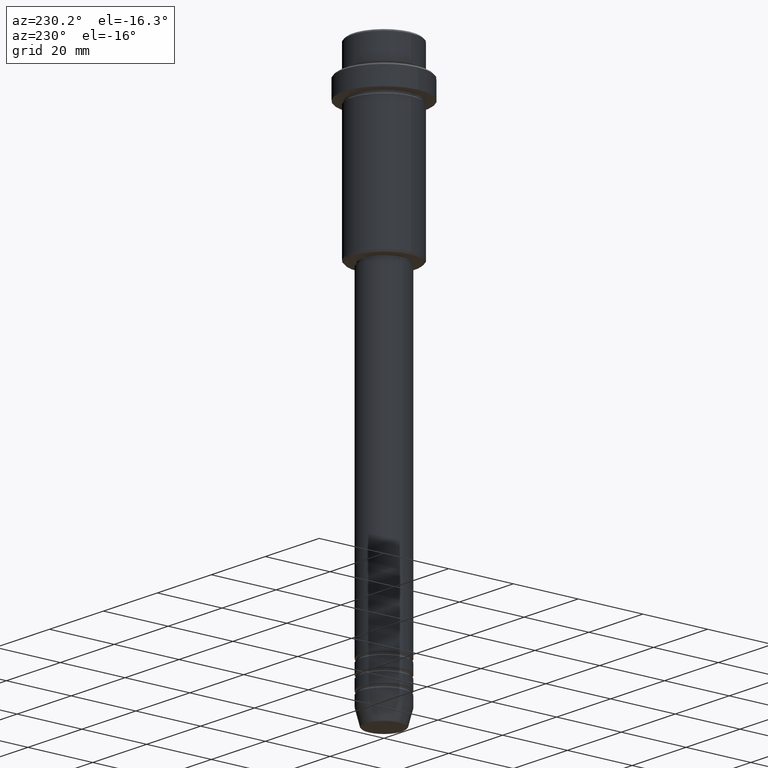
[diagram: clean part render]
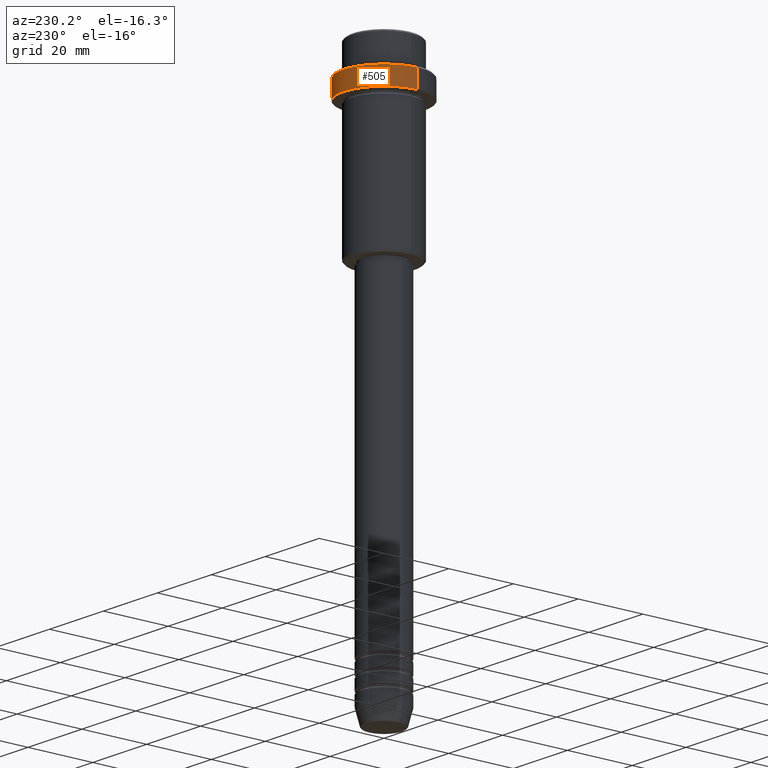
[diagram: same view with one face highlighted and labeled with its STEP entity id]
A machine part, auxiliary view. The second image highlights one B-rep face of the part: STEP entity #505.
In plain terms, the highlighted cylindrical surface (partial cylindrical patch) has radius 12.5 mm, axis along (-0, -0, 1).
Its self-contained STEP definition (entity closure, byte-faithful):
#4 = VERTEX_POINT ( 'NONE', #636 ) ;
#37 = VECTOR ( 'NONE', #1148, 1000.000000000000000 ) ;
#38 = DIRECTION ( 'NONE',  ( -0.000000000000000000, -0.000000000000000000, 1.000000000000000000 ) ) ;
#124 = ORIENTED_EDGE ( 'NONE', *, *, #1394, .T. ) ;
#129 = AXIS2_PLACEMENT_3D ( 'NONE', #417, #843, #204 ) ;
#197 = LINE ( 'NONE', #1282, #1137 ) ;
#204 = DIRECTION ( 'NONE',  ( 1.000000000000000000, 0.000000000000000000, 0.000000000000000000 ) ) ;
#212 = CYLINDRICAL_SURFACE ( 'NONE', #129, 12.50000000000000000 ) ;
#272 = CARTESIAN_POINT ( 'NONE',  ( 0.000000000000000000, 0.000000000000000000, -15.00000000000000178 ) ) ;
#287 = EDGE_CURVE ( 'NONE', #1139, #1382, #351, .T. ) ;
#351 = LINE ( 'NONE', #1258, #37 ) ;
#355 = ORIENTED_EDGE ( 'NONE', *, *, #944, .T. ) ;
#417 = CARTESIAN_POINT ( 'NONE',  ( 0.000000000000000000, 0.000000000000000000, 0.000000000000000000 ) ) ;
#454 = AXIS2_PLACEMENT_3D ( 'NONE', #272, #38, #475 ) ;
#475 = DIRECTION ( 'NONE',  ( 1.000000000000000000, 0.000000000000000000, 0.000000000000000000 ) ) ;
#494 = CIRCLE ( 'NONE', #1408, 12.50000000000000000 ) ;
#505 = ADVANCED_FACE ( 'NONE', ( #850 ), #212, .T. ) ;
#636 = CARTESIAN_POINT ( 'NONE',  ( -12.50000000000000000, 1.530808498934191521E-15, -9.499999999999978684 ) ) ;
#692 = CARTESIAN_POINT ( 'NONE',  ( 12.50000000000000000, 0.000000000000000000, -9.499999999999978684 ) ) ;
#723 = EDGE_LOOP ( 'NONE', ( #124, #1086, #355, #1078 ) ) ;
#760 = DIRECTION ( 'NONE',  ( 1.000000000000000000, 0.000000000000000000, 0.000000000000000000 ) ) ;
#761 = VERTEX_POINT ( 'NONE', #1163 ) ;
#843 = DIRECTION ( 'NONE',  ( -0.000000000000000000, -0.000000000000000000, 1.000000000000000000 ) ) ;
#850 = FACE_OUTER_BOUND ( 'NONE', #723, .T. ) ;
#867 = CARTESIAN_POINT ( 'NONE',  ( 0.000000000000000000, 0.000000000000000000, -9.499999999999978684 ) ) ;
#944 = EDGE_CURVE ( 'NONE', #4, #1382, #494, .T. ) ;
#953 = CIRCLE ( 'NONE', #454, 12.50000000000000000 ) ;
#1078 = ORIENTED_EDGE ( 'NONE', *, *, #287, .F. ) ;
#1086 = ORIENTED_EDGE ( 'NONE', *, *, #1158, .T. ) ;
#1137 = VECTOR ( 'NONE', #1184, 1000.000000000000000 ) ;
#1139 = VERTEX_POINT ( 'NONE', #1277 ) ;
#1148 = DIRECTION ( 'NONE',  ( -0.000000000000000000, -0.000000000000000000, 1.000000000000000000 ) ) ;
#1158 = EDGE_CURVE ( 'NONE', #761, #4, #197, .T. ) ;
#1163 = CARTESIAN_POINT ( 'NONE',  ( -12.50000000000000000, 1.530808498934191521E-15, -15.00000000000000178 ) ) ;
#1184 = DIRECTION ( 'NONE',  ( -0.000000000000000000, -0.000000000000000000, 1.000000000000000000 ) ) ;
#1258 = CARTESIAN_POINT ( 'NONE',  ( 12.50000000000000000, 0.000000000000000000, 0.000000000000000000 ) ) ;
#1277 = CARTESIAN_POINT ( 'NONE',  ( 12.50000000000000000, 0.000000000000000000, -15.00000000000000178 ) ) ;
#1282 = CARTESIAN_POINT ( 'NONE',  ( -12.50000000000000000, 1.530808498934191521E-15, 0.000000000000000000 ) ) ;
#1304 = DIRECTION ( 'NONE',  ( 0.000000000000000000, 0.000000000000000000, -1.000000000000000000 ) ) ;
#1382 = VERTEX_POINT ( 'NONE', #692 ) ;
#1394 = EDGE_CURVE ( 'NONE', #1139, #761, #953, .T. ) ;
#1408 = AXIS2_PLACEMENT_3D ( 'NONE', #867, #1304, #760 ) ;